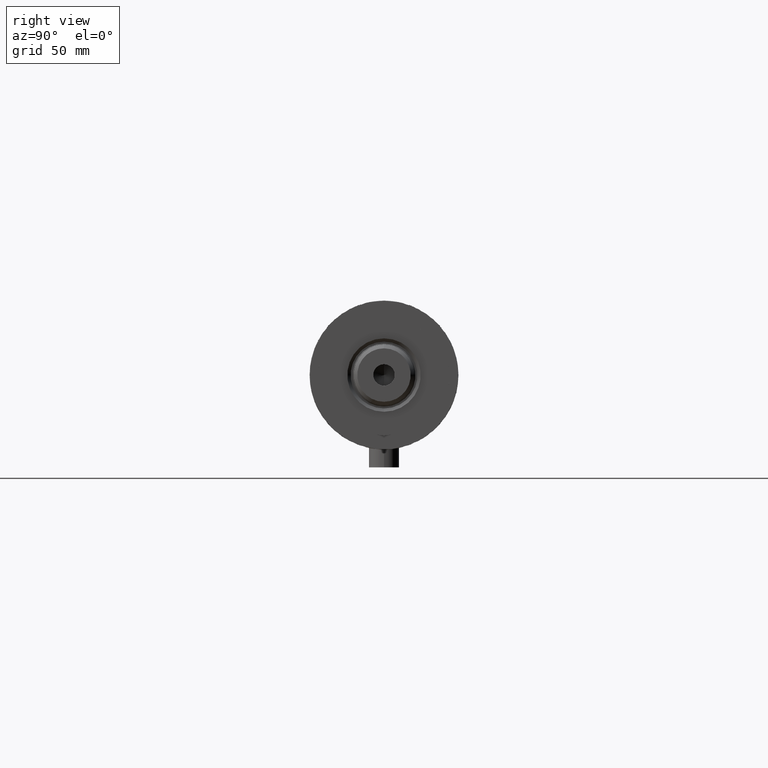
[diagram: clean part render]
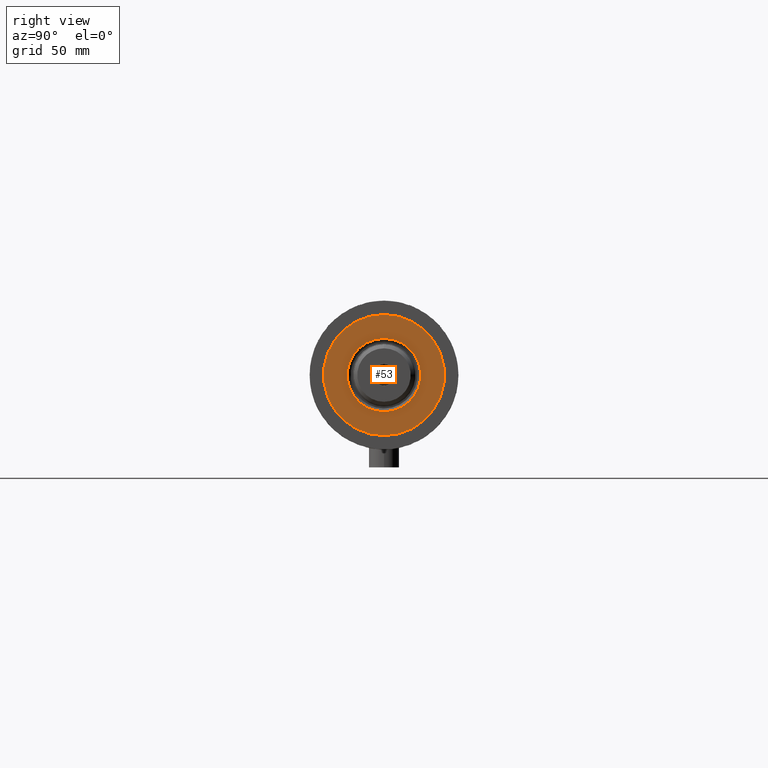
[diagram: same view with one face highlighted and labeled with its STEP entity id]
A machine part, right view. The second image highlights one B-rep face of the part: STEP entity #53.
In plain terms, the highlighted planar face has unit normal (1, 0, -0).
Its self-contained STEP definition (entity closure, byte-faithful):
#53 = ADVANCED_FACE ( 'NONE', ( #635, #4140 ), #2026, .T. ) ;
#308 = EDGE_CURVE ( 'NONE', #3690, #2788, #545, .T. ) ;
#530 = EDGE_CURVE ( 'NONE', #2788, #3690, #4388, .T. ) ;
#545 = CIRCLE ( 'NONE', #1207, 24.00000000000000355 ) ;
#635 = FACE_BOUND ( 'NONE', #2640, .T. ) ;
#960 = DIRECTION ( 'NONE',  ( -0.000000000000000000, -0.000000000000000000, -1.000000000000000000 ) ) ;
#997 = CARTESIAN_POINT ( 'NONE',  ( 14.54999999999997939, 0.000000000000000000, 41.00000000000000000 ) ) ;
#998 = CIRCLE ( 'NONE', #2527, 14.54999999999997939 ) ;
#1141 = DIRECTION ( 'NONE',  ( 1.000000000000000000, 0.000000000000000000, 0.000000000000000000 ) ) ;
#1207 = AXIS2_PLACEMENT_3D ( 'NONE', #3520, #1839, #1141 ) ;
#1258 = CARTESIAN_POINT ( 'NONE',  ( 0.000000000000000000, 0.000000000000000000, 41.00000000000000000 ) ) ;
#1273 = AXIS2_PLACEMENT_3D ( 'NONE', #1479, #3908, #2190 ) ;
#1479 = CARTESIAN_POINT ( 'NONE',  ( 0.000000000000000000, 0.000000000000000000, 41.00000000000000000 ) ) ;
#1592 = VERTEX_POINT ( 'NONE', #1829 ) ;
#1626 = ORIENTED_EDGE ( 'NONE', *, *, #2488, .T. ) ;
#1687 = DIRECTION ( 'NONE',  ( 0.000000000000000000, 0.000000000000000000, 1.000000000000000000 ) ) ;
#1829 = CARTESIAN_POINT ( 'NONE',  ( -14.54999999999997939, 1.781861092759396721E-15, 41.00000000000000000 ) ) ;
#1838 = VERTEX_POINT ( 'NONE', #997 ) ;
#1839 = DIRECTION ( 'NONE',  ( 0.000000000000000000, 0.000000000000000000, 1.000000000000000000 ) ) ;
#1853 = AXIS2_PLACEMENT_3D ( 'NONE', #1931, #3323, #3010 ) ;
#1883 = ORIENTED_EDGE ( 'NONE', *, *, #4050, .T. ) ;
#1931 = CARTESIAN_POINT ( 'NONE',  ( 0.000000000000000000, 0.000000000000000000, 41.00000000000000000 ) ) ;
#2026 = PLANE ( 'NONE',  #2444 ) ;
#2190 = DIRECTION ( 'NONE',  ( 1.000000000000000000, 0.000000000000000000, 0.000000000000000000 ) ) ;
#2430 = CARTESIAN_POINT ( 'NONE',  ( -24.00000000000000355, 0.000000000000000000, 41.00000000000000000 ) ) ;
#2444 = AXIS2_PLACEMENT_3D ( 'NONE', #3397, #1687, #2770 ) ;
#2488 = EDGE_CURVE ( 'NONE', #1592, #1838, #3231, .T. ) ;
#2527 = AXIS2_PLACEMENT_3D ( 'NONE', #1258, #960, #2974 ) ;
#2640 = EDGE_LOOP ( 'NONE', ( #1883, #1626 ) ) ;
#2753 = CARTESIAN_POINT ( 'NONE',  ( 24.00000000000000355, 2.939152317953648289E-15, 41.00000000000000000 ) ) ;
#2770 = DIRECTION ( 'NONE',  ( 1.000000000000000000, 0.000000000000000000, -0.000000000000000000 ) ) ;
#2788 = VERTEX_POINT ( 'NONE', #2753 ) ;
#2855 = EDGE_LOOP ( 'NONE', ( #2996, #3418 ) ) ;
#2974 = DIRECTION ( 'NONE',  ( 1.000000000000000000, 0.000000000000000000, 0.000000000000000000 ) ) ;
#2996 = ORIENTED_EDGE ( 'NONE', *, *, #308, .T. ) ;
#3010 = DIRECTION ( 'NONE',  ( 1.000000000000000000, 0.000000000000000000, 0.000000000000000000 ) ) ;
#3231 = CIRCLE ( 'NONE', #1273, 14.54999999999997939 ) ;
#3323 = DIRECTION ( 'NONE',  ( 0.000000000000000000, 0.000000000000000000, 1.000000000000000000 ) ) ;
#3397 = CARTESIAN_POINT ( 'NONE',  ( 0.000000000000000000, 0.000000000000000000, 41.00000000000000000 ) ) ;
#3418 = ORIENTED_EDGE ( 'NONE', *, *, #530, .T. ) ;
#3520 = CARTESIAN_POINT ( 'NONE',  ( 0.000000000000000000, 0.000000000000000000, 41.00000000000000000 ) ) ;
#3690 = VERTEX_POINT ( 'NONE', #2430 ) ;
#3908 = DIRECTION ( 'NONE',  ( -0.000000000000000000, -0.000000000000000000, -1.000000000000000000 ) ) ;
#4050 = EDGE_CURVE ( 'NONE', #1838, #1592, #998, .T. ) ;
#4140 = FACE_OUTER_BOUND ( 'NONE', #2855, .T. ) ;
#4388 = CIRCLE ( 'NONE', #1853, 24.00000000000000355 ) ;